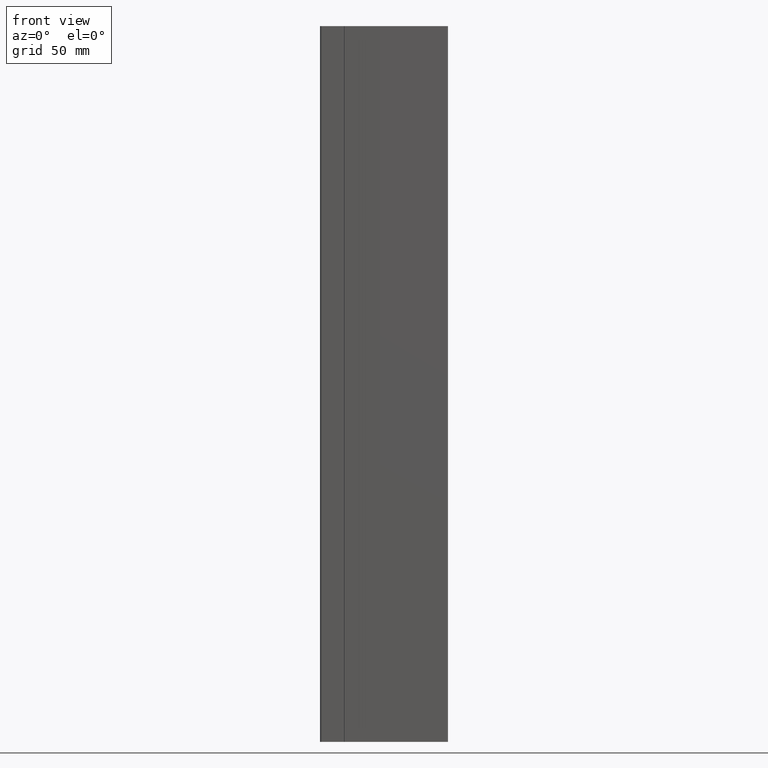
[diagram: clean part render]
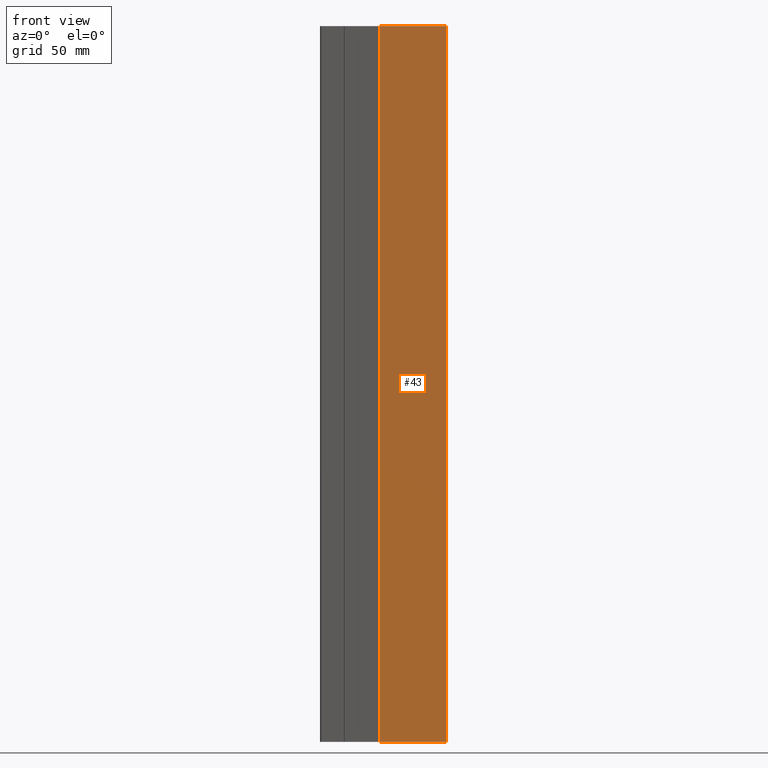
[diagram: same view with one face highlighted and labeled with its STEP entity id]
A machine part, front view. The second image highlights one B-rep face of the part: STEP entity #43.
In plain terms, the highlighted planar face has unit normal (0, 1, 0).
Its self-contained STEP definition (entity closure, byte-faithful):
#43 = ADVANCED_FACE ( 'NONE', ( #850 ), #733, .F. ) ;
#144 = ORIENTED_EDGE ( 'NONE', *, *, #1702, .F. ) ;
#252 = EDGE_LOOP ( 'NONE', ( #533, #144, #425, #1733 ) ) ;
#263 = DIRECTION ( 'NONE',  ( 1.000000000000000000, 0.0000000000000000000, 0.0000000000000000000 ) ) ;
#293 = CARTESIAN_POINT ( 'NONE',  ( 0.0000000000000000000, -16.50040959999999400, -150.0000000000000000 ) ) ;
#390 = LINE ( 'NONE', #863, #607 ) ;
#399 = LINE ( 'NONE', #1790, #767 ) ;
#404 = VERTEX_POINT ( 'NONE', #1464 ) ;
#425 = ORIENTED_EDGE ( 'NONE', *, *, #551, .F. ) ;
#447 = CARTESIAN_POINT ( 'NONE',  ( 0.0000000000000000000, -16.50040959999999400, 150.0000000000000000 ) ) ;
#485 = CARTESIAN_POINT ( 'NONE',  ( 28.10000000000000100, -16.50040959999999400, -150.0000000000000000 ) ) ;
#533 = ORIENTED_EDGE ( 'NONE', *, *, #657, .T. ) ;
#551 = EDGE_CURVE ( 'NONE', #1533, #404, #1336, .T. ) ;
#607 = VECTOR ( 'NONE', #860, 1000.000000000000000 ) ;
#615 = VERTEX_POINT ( 'NONE', #485 ) ;
#622 = DIRECTION ( 'NONE',  ( 1.000000000000000000, 0.0000000000000000000, 0.0000000000000000000 ) ) ;
#635 = VECTOR ( 'NONE', #263, 1000.000000000000000 ) ;
#657 = EDGE_CURVE ( 'NONE', #1192, #615, #1537, .T. ) ;
#661 = CARTESIAN_POINT ( 'NONE',  ( 0.0000000000000000000, -16.50040959999999400, 150.0000000000000000 ) ) ;
#733 = PLANE ( 'NONE',  #755 ) ;
#742 = DIRECTION ( 'NONE',  ( 0.0000000000000000000, -0.0000000000000000000, 1.000000000000000000 ) ) ;
#755 = AXIS2_PLACEMENT_3D ( 'NONE', #447, #1866, #742 ) ;
#767 = VECTOR ( 'NONE', #1783, 1000.000000000000000 ) ;
#820 = VECTOR ( 'NONE', #622, 1000.000000000000000 ) ;
#850 = FACE_OUTER_BOUND ( 'NONE', #252, .T. ) ;
#860 = DIRECTION ( 'NONE',  ( -0.0000000000000000000, -0.0000000000000000000, -1.000000000000000000 ) ) ;
#863 = CARTESIAN_POINT ( 'NONE',  ( 28.10000000000000100, -16.50040959999999400, 150.0000000000000000 ) ) ;
#992 = EDGE_CURVE ( 'NONE', #1533, #1192, #399, .T. ) ;
#1098 = CARTESIAN_POINT ( 'NONE',  ( 0.0000000000000000000, -16.50040959999999400, 150.0000000000000000 ) ) ;
#1192 = VERTEX_POINT ( 'NONE', #1447 ) ;
#1336 = LINE ( 'NONE', #661, #820 ) ;
#1447 = CARTESIAN_POINT ( 'NONE',  ( 0.0000000000000000000, -16.50040959999999400, -150.0000000000000000 ) ) ;
#1464 = CARTESIAN_POINT ( 'NONE',  ( 28.10000000000000100, -16.50040959999999400, 150.0000000000000000 ) ) ;
#1533 = VERTEX_POINT ( 'NONE', #1098 ) ;
#1537 = LINE ( 'NONE', #293, #635 ) ;
#1702 = EDGE_CURVE ( 'NONE', #404, #615, #390, .T. ) ;
#1733 = ORIENTED_EDGE ( 'NONE', *, *, #992, .T. ) ;
#1783 = DIRECTION ( 'NONE',  ( -0.0000000000000000000, -0.0000000000000000000, -1.000000000000000000 ) ) ;
#1790 = CARTESIAN_POINT ( 'NONE',  ( 0.0000000000000000000, -16.50040959999999400, 150.0000000000000000 ) ) ;
#1866 = DIRECTION ( 'NONE',  ( 0.0000000000000000000, 1.000000000000000000, 0.0000000000000000000 ) ) ;